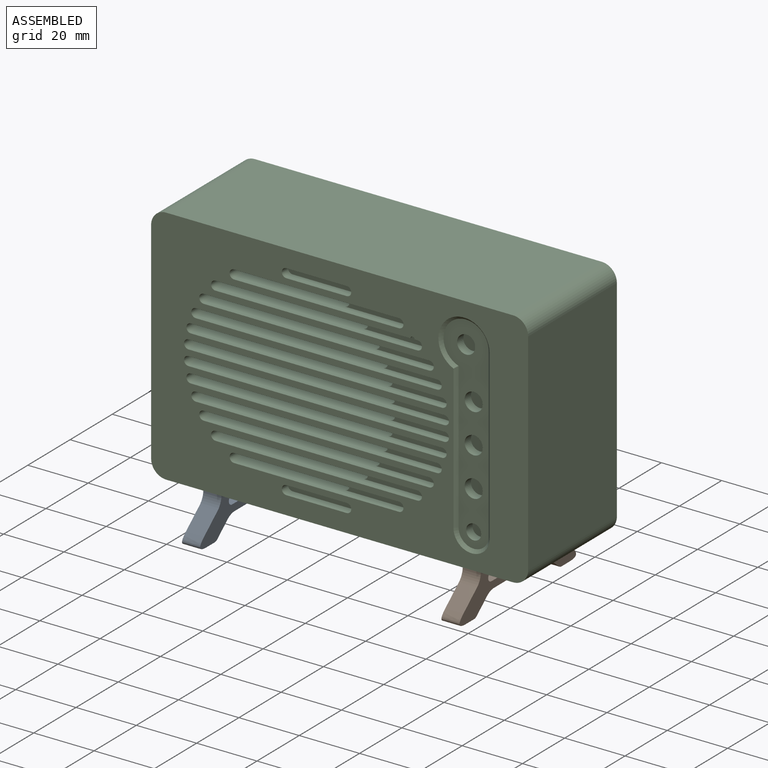
[diagram: assembled view]
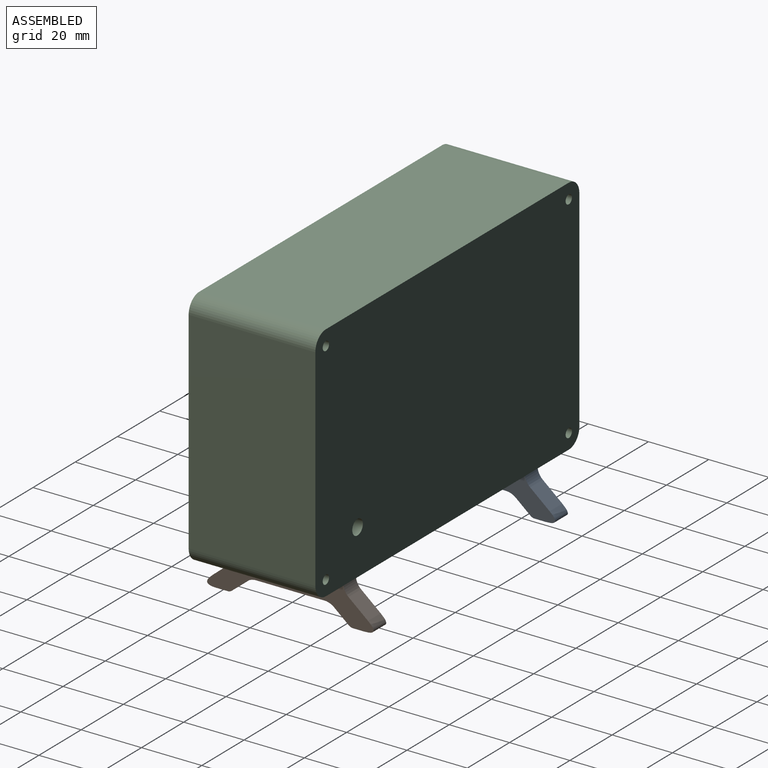
[diagram: assembled view, second angle]
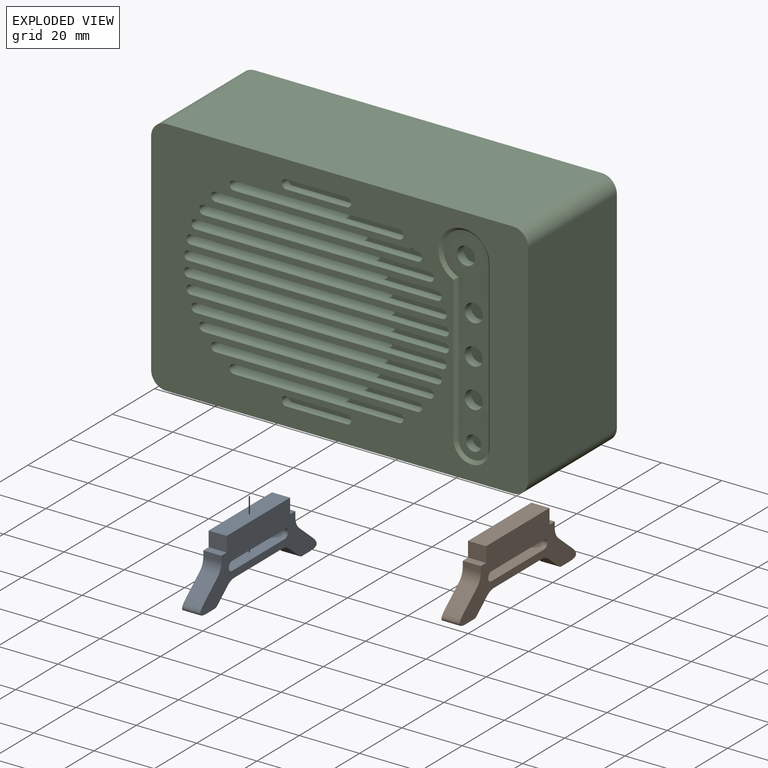
[diagram: exploded view]
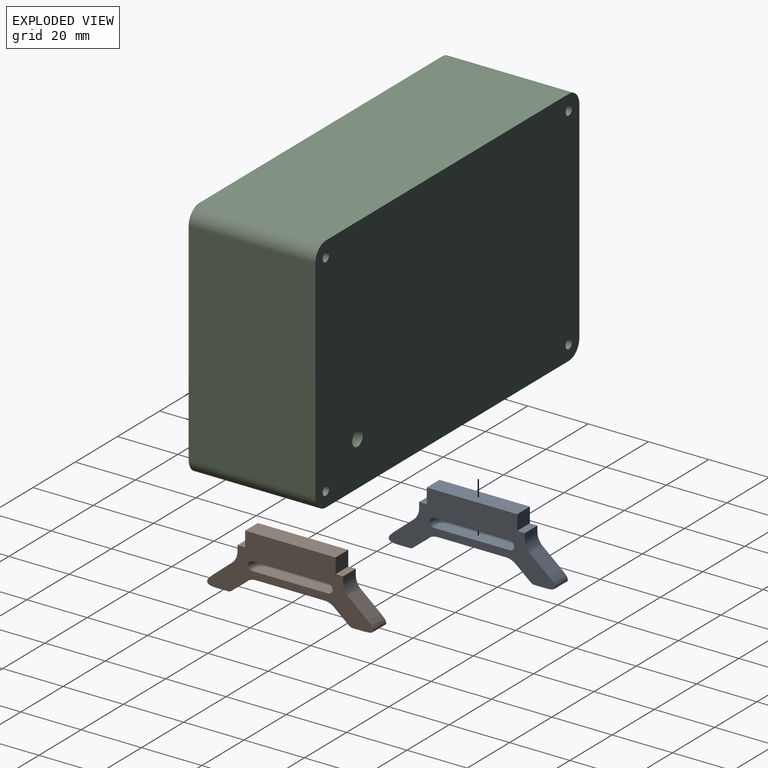
[diagram: exploded view, second angle]
ASSEMBLY  parts=3 mates=2
PART A: 28 faces, bbox 6.6x59.9x19.7 mm
  f0: plane 57.02x19.67mm, normal (1,0,0), area 516.3mm2, adj f2,f3,f4,f5,f6,f7,f8,f9
  f1: plane 57.02x19.67mm, normal (-1,0,0), area 516.3mm2, adj f2,f3,f4,f5,f6,f7,f8,f9
  f2: plane 30x6mm, normal (0,0,1), area 180mm2, adj f0,f1,f3,f15
  f3: plane 6x5mm, normal (0,-1,0), area 30mm2, adj f0,f1,f2,f4
  f4: plane 6x2.5mm, normal (0,0,1), area 15mm2, adj f0,f1,f3,f5
  f5: plane 6x1.87mm, normal (0,-1,0), area 11.2mm2, adj f0,f1,f4,f16
  f6: plane 6.47x6mm, normal (0,-0.64,0.77), area 50.7mm2, adj f0,f1,f16,f23
  f7: plane 6x3.75mm, normal (0,0,-1), area 22.5mm2, adj f0,f1,f22,f23
  f8: plane 6x4.92mm, normal (0,0.64,-0.77), area 38.6mm2, adj f0,f1,f17,f22
  f9: plane 22.61x6mm, normal (0,0,-1), area 135.7mm2, adj f0,f1,f17,f19
  f10: plane 6x4.92mm, normal (0,-0.64,-0.77), area 38.6mm2, adj f0,f1,f19,f21
  f11: plane 6x3.75mm, normal (0,0,-1), area 22.5mm2, adj f0,f1,f20,f21
  f12: plane 6.47x6mm, normal (0,0.64,0.77), area 50.7mm2, adj f0,f1,f18,f20
  f13: plane 6x1.87mm, normal (0,1,0), area 11.2mm2, adj f0,f1,f14,f18
  f14: plane 6x2.5mm, normal (0,0,1), area 15mm2, adj f0,f1,f13,f15
  f15: plane 6x5mm, normal (0,1,0), area 30mm2, adj f0,f1,f2,f14
  f16: cylinder r=5mm len=6mm, axis (1,0,0), area 26.2mm2, adj f0,f1,f5,f6
  f17: cylinder r=5mm len=6mm, axis (1,0,0), area 20.9mm2, adj f0,f1,f8,f9
  f18: cylinder r=5mm len=6mm, axis (1,0,0), area 26.2mm2, adj f0,f1,f12,f13
  f19: cylinder r=5mm len=6mm, axis (-1,0,0), area 20.9mm2, adj f0,f1,f9,f10
  f20: bspline ~6.6x5.5mm, area 40.1mm2, adj f0,f1,f11,f12
  f21: bspline ~6.6x1.29mm, area 8.4mm2, adj f0,f1,f10,f11
  f22: bspline ~6.6x1.29mm, area 8.4mm2, adj f0,f1,f7,f8
  f23: bspline ~6.6x5.5mm, area 40.1mm2, adj f0,f1,f6,f7
  f24: cylinder r=1.5mm len=6mm, axis (1,0,0), area 28.3mm2, adj f0,f1,f25,f27
  f25: plane 25x6mm, normal (0,0,-1), area 150mm2, adj f0,f1,f24,f26
  f26: cylinder r=1.5mm len=6mm, axis (1,0,0), area 28.3mm2, adj f0,f1,f25,f27
  f27: plane 25x6mm, normal (0,0,1), area 150mm2, adj f0,f1,f24,f26
PART B: same geometry as A
PART C: 138 faces, bbox 125x42x80 mm
  f0: plane 6x5mm, normal (0,1,0), area 30mm2, adj f6,f114,f115,f116
  f1: plane 111.99x65mm, normal (0,1,0), area 5173.6mm2, adj f12,f13,f14,f15,f16,f17,f18,f19
  f2: plane 125x80mm, normal (0,-1,0), area 6228.7mm2, adj f4,f5,f6,f7,f8,f9,f10,f11
  f3: plane 6x5mm, normal (0,1,0), area 30mm2, adj f6,f111,f112,f113
  f4: plane 115x42mm, normal (0,0,1), area 4830mm2, adj f2,f8,f11,f129
  f5: plane 70x42mm, normal (-1,0,0), area 2940mm2, adj f2,f8,f9,f129
  f6: plane 115x42mm, normal (0,0,-1), area 4470mm2, adj f0,f2,f3,f9,f10,f111,f112,f114
  f7: plane 70x42mm, normal (1,0,0), area 2940mm2, adj f2,f10,f11,f129
  f8: cylinder r=5mm len=42mm, axis (0,-1,0), area 329.9mm2, adj f2,f4,f5,f129
  f9: cylinder r=5mm len=42mm, axis (0,1,0), area 329.9mm2, adj f2,f5,f6,f129
  f10: cylinder r=5mm len=42mm, axis (0,-1,0), area 329.9mm2, adj f2,f6,f7,f129
  f11: cylinder r=5mm len=42mm, axis (0,1,0), area 329.9mm2, adj f2,f4,f7,f129
  f12: plane 54.64x6mm, normal (0,0,1), area 267.8mm2, adj f1,f2,f13,f15,f76,f77
  f13: cylinder r=1.5mm len=3mm, axis (0,-1,0), area 14.1mm2, adj f1,f12,f14,f77
  f14: plane 54.64x6mm, normal (0,0,-1), area 267.8mm2, adj f1,f2,f13,f15,f76,f77
  f15: cylinder r=1.5mm len=6mm, axis (0,-1,0), area 28.3mm2, adj f1,f2,f12,f14
  f16: plane 66.9x6mm, normal (0,0,1), area 341.4mm2, adj f1,f2,f17,f19,f74,f75
  f17: cylinder r=1.5mm len=3mm, axis (0,-1,0), area 14.1mm2, adj f1,f16,f18,f75
  f18: plane 66.9x6mm, normal (0,0,-1), area 341.4mm2, adj f1,f2,f17,f19,f74,f75
  f19: cylinder r=1.5mm len=6mm, axis (0,-1,0), area 28.3mm2, adj f1,f2,f16,f18
  f20: cylinder r=1.5mm len=3mm, axis (0,-1,0), area 14.1mm2, adj f1,f21,f23,f63
  f21: plane 74.77x6mm, normal (0,0,-1), area 388.6mm2, adj f1,f2,f20,f22,f62,f63
  f22: cylinder r=1.5mm len=6mm, axis (0,-1,0), area 28.3mm2, adj f1,f2,f21,f23
  f23: plane 74.77x6mm, normal (0,0,1), area 388.6mm2, adj f1,f2,f20,f22,f62,f63
  f24: cylinder r=1.5mm len=3mm, axis (0,-1,0), area 14.1mm2, adj f1,f25,f27,f79
  f25: plane 80x6mm, normal (0,0,-1), area 420mm2, adj f1,f2,f24,f26,f78,f79
  f26: cylinder r=1.5mm len=6mm, axis (0,-1,0), area 28.3mm2, adj f1,f2,f25,f27
  f27: plane 80x6mm, normal (0,0,1), area 420mm2, adj f1,f2,f24,f26,f78,f79
  f28: plane 83.25x6mm, normal (0,0,1), area 439.5mm2, adj f1,f2,f29,f31,f80,f81
  f29: cylinder r=1.5mm len=3mm, axis (0,-1,0), area 14.1mm2, adj f1,f28,f30,f81
  f30: plane 83.25x6mm, normal (0,0,-1), area 439.5mm2, adj f1,f2,f29,f31,f80,f81
  f31: cylinder r=1.5mm len=6mm, axis (0,-1,0), area 28.3mm2, adj f1,f2,f28,f30
  f32: plane 84.81x6mm, normal (0,0,1), area 448.8mm2, adj f1,f2,f33,f35,f82,f83
  f33: cylinder r=1.5mm len=3mm, axis (0,-1,0), area 14.1mm2, adj f1,f32,f34,f83
  f34: plane 84.81x6mm, normal (0,0,-1), area 448.8mm2, adj f1,f2,f33,f35,f82,f83
  f35: cylinder r=1.5mm len=6mm, axis (0,-1,0), area 28.3mm2, adj f1,f2,f32,f34
  f36: cylinder r=1.5mm len=3mm, axis (0,-1,0), area 14.1mm2, adj f1,f37,f39,f85
  f37: plane 84.81x6mm, normal (0,0,-1), area 448.8mm2, adj f1,f2,f36,f38,f84,f85
  f38: cylinder r=1.5mm len=6mm, axis (0,-1,0), area 28.3mm2, adj f1,f2,f37,f39
  f39: plane 84.81x6mm, normal (0,0,1), area 448.8mm2, adj f1,f2,f36,f38,f84,f85
  f40: cylinder r=1.5mm len=3mm, axis (0,-1,0), area 14.1mm2, adj f1,f41,f43,f87
  f41: plane 83.25x6mm, normal (0,0,-1), area 439.5mm2, adj f1,f2,f40,f42,f86,f87
  f42: cylinder r=1.5mm len=6mm, axis (0,-1,0), area 28.3mm2, adj f1,f2,f41,f43
  f43: plane 83.25x6mm, normal (0,0,1), area 439.5mm2, adj f1,f2,f40,f42,f86,f87
  f44: plane 80x6mm, normal (0,0,1), area 420mm2, adj f1,f2,f45,f47,f88,f89
  f45: cylinder r=1.5mm len=3mm, axis (0,-1,0), area 14.1mm2, adj f1,f44,f46,f89
  f46: plane 80x6mm, normal (0,0,-1), area 420mm2, adj f1,f2,f45,f47,f88,f89
  f47: cylinder r=1.5mm len=6mm, axis (0,-1,0), area 28.3mm2, adj f1,f2,f44,f46
  f48: cylinder r=1.5mm len=3mm, axis (0,-1,0), area 14.1mm2, adj f1,f49,f51,f91
  f49: plane 74.77x6mm, normal (0,0,-1), area 388.6mm2, adj f1,f2,f48,f50,f90,f91
  f50: cylinder r=1.5mm len=6mm, axis (0,-1,0), area 28.3mm2, adj f1,f2,f49,f51
  f51: plane 74.77x6mm, normal (0,0,1), area 388.6mm2, adj f1,f2,f48,f50,f90,f91
  f52: plane 66.9x6mm, normal (0,0,1), area 341.4mm2, adj f1,f2,f53,f55,f92,f93
  f53: cylinder r=1.5mm len=3mm, axis (0,-1,0), area 14.1mm2, adj f1,f52,f54,f93
  f54: plane 66.9x6mm, normal (0,0,-1), area 340mm2, adj f1,f2,f53,f55,f92,f93,f103,f104
  f55: cylinder r=1.5mm len=6mm, axis (0,-1,0), area 28.3mm2, adj f1,f2,f52,f54
  f56: plane 54.64x6mm, normal (0,0,1), area 267.8mm2, adj f1,f2,f57,f59,f60,f61
  f57: cylinder r=1.5mm len=3mm, axis (0,-1,0), area 14.1mm2, adj f1,f56,f58,f61
  f58: plane 54.64x6mm, normal (0,0,-1), area 267.8mm2, adj f1,f2,f57,f59,f60,f61
  f59: cylinder r=1.5mm len=6mm, axis (0,-1,0), area 28.3mm2, adj f1,f2,f56,f58
  f60: cylinder r=1.5mm len=3mm, axis (0,-1,0), area 14.1mm2, adj f2,f56,f58,f61
  f61: plane 21.5x3mm, normal (0,-1,0), area 60mm2, adj f56,f57,f58,f60
  f62: cylinder r=1.5mm len=3mm, axis (0,-1,0), area 14.1mm2, adj f2,f21,f23,f63
  f63: plane 21.5x3mm, normal (0,-1,0), area 60mm2, adj f20,f21,f23,f62
  f64: cylinder r=1.5mm len=3mm, axis (0,-1,0), area 14.1mm2, adj f2,f65,f67,f68
  f65: plane 20x3mm, normal (0,0,-1), area 60mm2, adj f2,f64,f66,f68
  f66: cylinder r=1.5mm len=3mm, axis (0,-1,0), area 14.1mm2, adj f2,f65,f67,f68
  f67: plane 20x3mm, normal (0,0,1), area 60mm2, adj f2,f64,f66,f68
  f68: plane 23x3mm, normal (0,-1,0), area 67.1mm2, adj f64,f65,f66,f67
  f69: cylinder r=1.5mm len=3mm, axis (0,-1,0), area 14.1mm2, adj f2,f70,f72,f73
  f70: plane 20x3mm, normal (0,0,-1), area 60mm2, adj f2,f69,f71,f73
  f71: cylinder r=1.5mm len=3mm, axis (0,-1,0), area 14.1mm2, adj f2,f70,f72,f73
  f72: plane 20x3mm, normal (0,0,1), area 60mm2, adj f2,f69,f71,f73
  f73: plane 23x3mm, normal (0,-1,0), area 67.1mm2, adj f69,f70,f71,f72
  f74: cylinder r=1.5mm len=3mm, axis (0,-1,0), area 14.1mm2, adj f2,f16,f18,f75
  f75: plane 21.5x3mm, normal (0,-1,0), area 60mm2, adj f16,f17,f18,f74
  f76: cylinder r=1.5mm len=3mm, axis (0,-1,0), area 14.1mm2, adj f2,f12,f14,f77
  f77: plane 21.5x3mm, normal (0,-1,0), area 60mm2, adj f12,f13,f14,f76
  f78: cylinder r=1.5mm len=3mm, axis (0,-1,0), area 14.1mm2, adj f2,f25,f27,f79
  f79: plane 21.5x3mm, normal (0,-1,0), area 60mm2, adj f24,f25,f27,f78
  f80: cylinder r=1.5mm len=3mm, axis (0,-1,0), area 14.1mm2, adj f2,f28,f30,f81
  f81: plane 21.5x3mm, normal (0,-1,0), area 60mm2, adj f28,f29,f30,f80
  f82: cylinder r=1.5mm len=3mm, axis (0,-1,0), area 14.1mm2, adj f2,f32,f34,f83
  f83: plane 21.5x3mm, normal (0,-1,0), area 60mm2, adj f32,f33,f34,f82
  f84: cylinder r=1.5mm len=3mm, axis (0,-1,0), area 14.1mm2, adj f2,f37,f39,f85
  f85: plane 21.5x3mm, normal (0,-1,0), area 60mm2, adj f36,f37,f39,f84
  f86: cylinder r=1.5mm len=3mm, axis (0,-1,0), area 14.1mm2, adj f2,f41,f43,f87
  f87: plane 21.5x3mm, normal (0,-1,0), area 60mm2, adj f40,f41,f43,f86
  f88: cylinder r=1.5mm len=3mm, axis (0,-1,0), area 14.1mm2, adj f2,f44,f46,f89
  f89: plane 21.5x3mm, normal (0,-1,0), area 60mm2, adj f44,f45,f46,f88
  f90: cylinder r=1.5mm len=3mm, axis (0,-1,0), area 14.1mm2, adj f2,f49,f51,f91
  f91: plane 21.5x3mm, normal (0,-1,0), area 60mm2, adj f48,f49,f51,f90
  f92: cylinder r=1.5mm len=3mm, axis (0,-1,0), area 14.1mm2, adj f2,f52,f54,f93
  f93: plane 21.5x3mm, normal (0,-1,0), area 60mm2, adj f52,f53,f54,f92
  f94: plane 68x15mm, normal (0,-1,0), area 575.7mm2, adj f96,f98,f100,f102,f106,f107,f108,f109
  f95: plane 6x6mm, normal (0,-1,0), area 28.3mm2, adj f96
  f96: cylinder r=3mm len=6mm, axis (0,-1,0), area 56.5mm2, adj f94,f95
  f97: plane 6x6mm, normal (0,-1,0), area 28.3mm2, adj f98
  f98: cylinder r=3mm len=6mm, axis (0,-1,0), area 56.5mm2, adj f94,f97
  f99: plane 6x6mm, normal (0,-1,0), area 28.3mm2, adj f100
  f100: cylinder r=3mm len=6mm, axis (0,-1,0), area 56.5mm2, adj f94,f99
  f101: plane 6x6mm, normal (0,-1,0), area 28.3mm2, adj f102
  f102: cylinder r=3mm len=6mm, axis (0,-1,0), area 56.5mm2, adj f94,f101
  f103: cylinder r=0.71mm len=1.41mm, axis (0,-1,0), area 2.2mm2, adj f2,f54,f104
  f104: plane 1.41x0.71mm, normal (0,-1,0), area 0.8mm2, adj f54,f103
  f105: plane 5x5mm, normal (0,-1,0), area 19.6mm2, adj f106
  f106: cylinder r=2.5mm len=5mm, axis (0,-1,0), area 47.1mm2, adj f94,f105
  f107: plane 48.43x1mm, normal (0.71,-0.71,0), area 68mm2, adj f2,f94,f108,f109
  f108: cone r=7.5mm half-angle=45deg, axis (0,-1,0), area 49mm2, adj f2,f94,f107,f110
  f109: cone r=5mm half-angle=45deg, axis (0,-1,0), area 24.4mm2, adj f2,f94,f107,f110
  f110: plane 55.5x1mm, normal (-0.71,-0.71,0), area 78.5mm2, adj f2,f94,f108,f109
  f111: plane 30x5mm, normal (-1,0,0), area 150mm2, adj f3,f6,f113,f130
  f112: plane 30x5mm, normal (1,0,0), area 150mm2, adj f3,f6,f113,f130
  f113: plane 30x6mm, normal (0,0,-1), area 180mm2, adj f3,f111,f112,f130
  f114: plane 30x5mm, normal (-1,0,0), area 150mm2, adj f0,f6,f116,f128
  f115: plane 30x5mm, normal (1,0,0), area 150mm2, adj f0,f6,f116,f128
  f116: plane 30x6mm, normal (0,0,-1), area 180mm2, adj f0,f114,f115,f128
  f117: plane 111.99x30mm, normal (0,0,1), area 3359.8mm2, adj f1,f118,f124,f127
  f118: plane 60x30mm, normal (1,0,0), area 1800mm2, adj f1,f117,f119,f127
  f119: plane 30x9.14mm, normal (0,0,-1), area 274.2mm2, adj f1,f118,f120,f127
  f120: plane 30x5mm, normal (1,0,0), area 150mm2, adj f1,f119,f121,f127
  f121: plane 97x30mm, normal (0,0,-1), area 2910mm2, adj f1,f120,f122,f127
  f122: plane 30x5mm, normal (-1,0,0), area 150mm2, adj f1,f121,f123,f127
  f123: plane 30x5.85mm, normal (0,0,-1), area 175.6mm2, adj f1,f122,f124,f127
  f124: plane 60x30mm, normal (-1,0,0), area 1800mm2, adj f1,f117,f123,f127
  f125: cylinder r=1.5mm len=25mm, axis (0,1,0), area 235.6mm2, adj f126,f129
  f126: plane 3x3mm, normal (0,1,0), area 7.1mm2, adj f125
  f127: plane 111.99x65mm, normal (0,-1,0), area 7185mm2, adj f117,f118,f119,f120,f121,f122,f123,f124
  f128: plane 6x5mm, normal (0,-1,0), area 30mm2, adj f6,f114,f115,f116
  f129: plane 125x80mm, normal (0,1,0), area 9930.6mm2, adj f4,f5,f6,f7,f8,f9,f10,f11
  f130: plane 6x5mm, normal (0,-1,0), area 30mm2, adj f6,f111,f112,f113
  f131: cylinder r=2.5mm len=6mm, axis (0,1,0), area 94.2mm2, adj f127,f129
  f132: plane 3x3mm, normal (0,1,0), area 7.1mm2, adj f133
  f133: cylinder r=1.5mm len=25mm, axis (0,1,0), area 235.6mm2, adj f129,f132
  f134: plane 3x3mm, normal (0,1,0), area 7.1mm2, adj f135
  f135: cylinder r=1.5mm len=25mm, axis (0,1,0), area 235.6mm2, adj f129,f134
  f136: plane 3x3mm, normal (0,1,0), area 7.1mm2, adj f137
  f137: cylinder r=1.5mm len=25mm, axis (0,1,0), area 235.6mm2, adj f129,f136
PLACE A t=(-91.84,-45.16,14.52)mm
PLACE B t=(-5.85,-45.16,14.52)mm
PLACE C t=(-5.85,-45.16,14.52)mm
MATE fastened C.f113 <-> A.f2  axis (0,0,-1) through (-5.43,-30.16,-29.04)mm
MATE fastened B.f2 <-> C.f116  axis (0,0,1) through (80.56,-30.16,-29.04)mm
